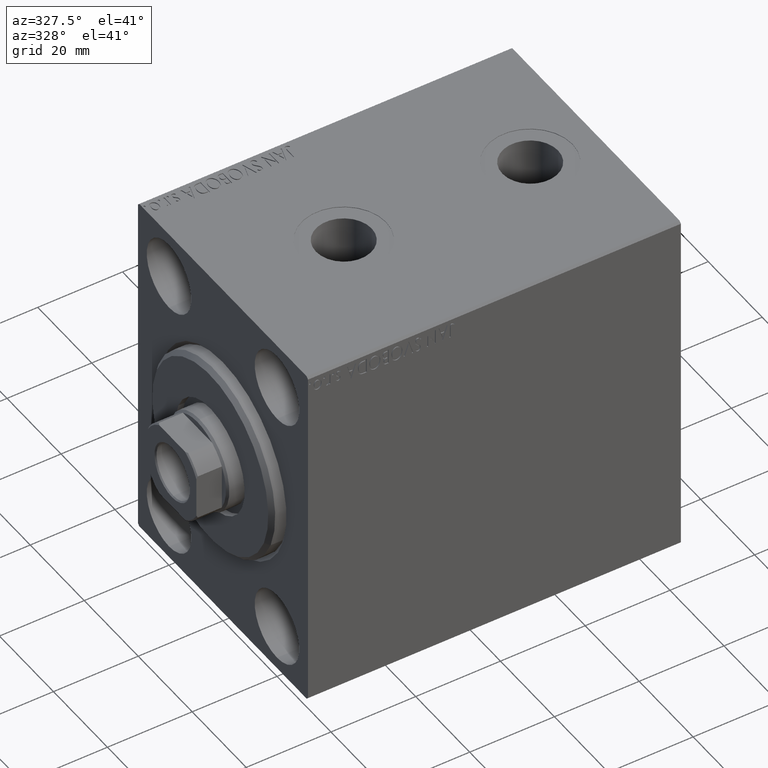
[diagram: clean part render]
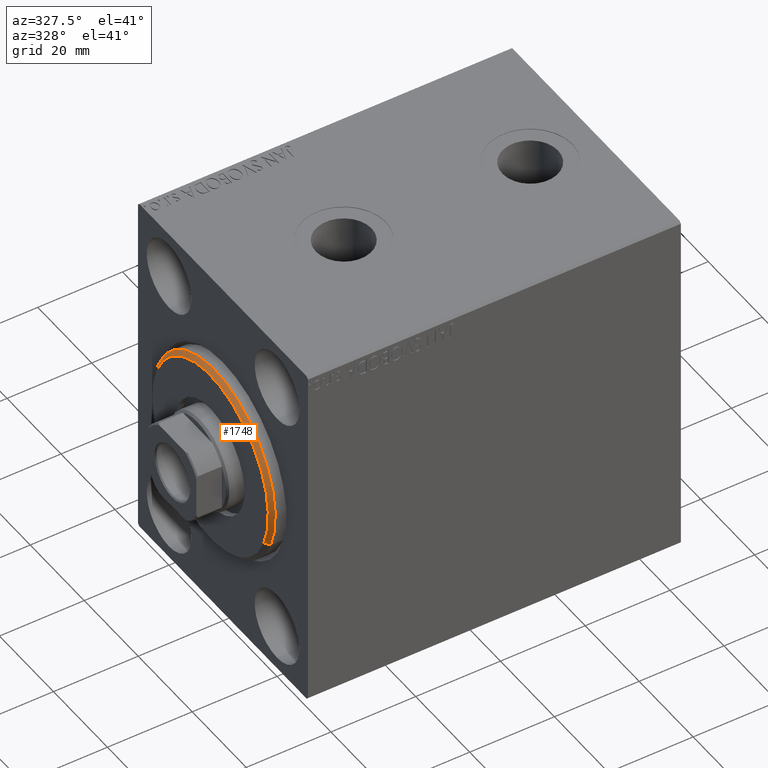
[diagram: same view with one face highlighted and labeled with its STEP entity id]
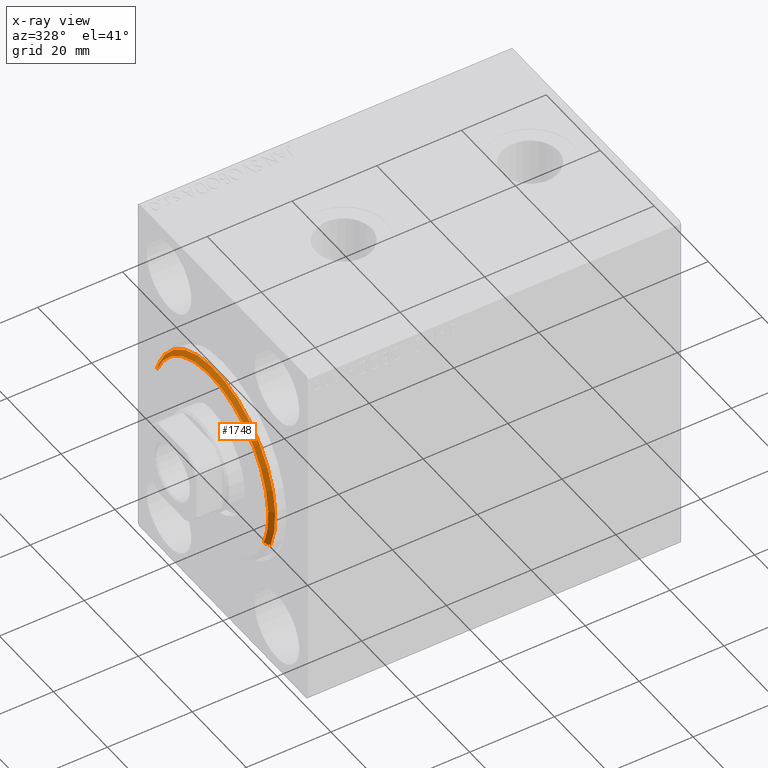
[diagram: x-ray of the same camera — body ghosted, the highlighted face saturated]
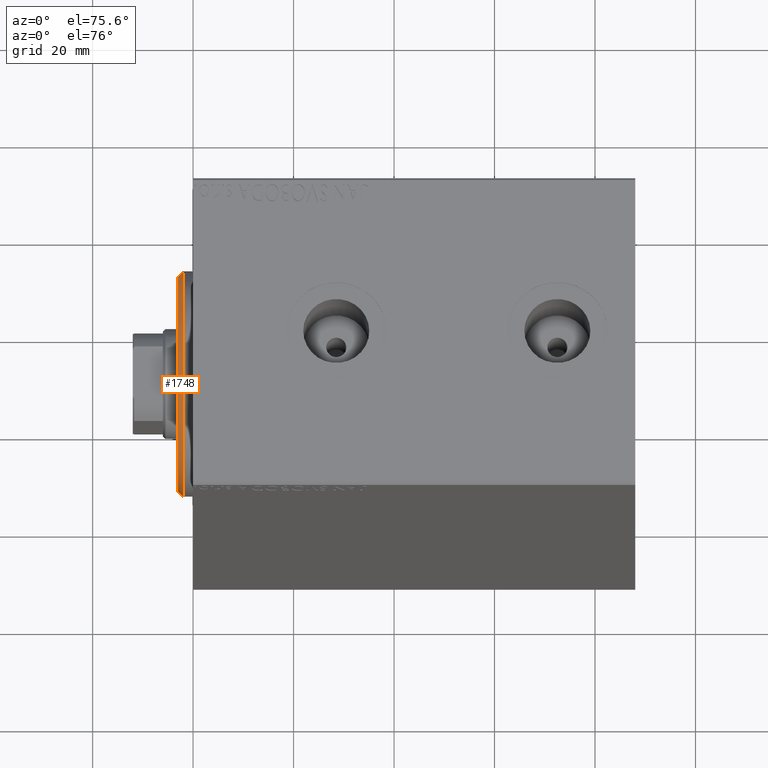
[diagram: same view with one face highlighted and labeled with its STEP entity id]
A machine part, auxiliary view. The second image highlights one B-rep face of the part: STEP entity #1748.
The next image is the same camera in x-ray: the body ghosted, the highlighted face saturated — about 0% of this face is hidden behind the body in this view.
A second angle (auxiliary view) of the same face is appended — the face is thin or edge-on in the first view.
In plain terms, the highlighted conical surface has half-angle 45 deg.
Its self-contained STEP definition (entity closure, byte-faithful):
#50 = DIRECTION ( 'NONE',  ( 0.000000000000000000, 0.000000000000000000, 1.000000000000000000 ) ) ;
#695 = CARTESIAN_POINT ( 'NONE',  ( 3.000000000000000000, 2.632990618166810024E-15, -21.50000000000000355 ) ) ;
#1179 = DIRECTION ( 'NONE',  ( -0.7071067811865487940, 0.000000000000000000, 0.7071067811865463515 ) ) ;
#1387 = CARTESIAN_POINT ( 'NONE',  ( 1.999999999999999112, 2.755455298081545172E-15, -22.50000000000000355 ) ) ;
#1639 = EDGE_CURVE ( 'NONE', #21794, #3740, #41893, .T. ) ;
#1748 = ADVANCED_FACE ( 'NONE', ( #3386 ), #5576, .T. ) ;
#2724 = AXIS2_PLACEMENT_3D ( 'NONE', #17853, #10701, #50 ) ;
#3386 = FACE_OUTER_BOUND ( 'NONE', #43599, .T. ) ;
#3740 = VERTEX_POINT ( 'NONE', #18084 ) ;
#5576 = CONICAL_SURFACE ( 'NONE', #2724, 21.50000000000000355, 0.7853981633974466137 ) ;
#5945 = CARTESIAN_POINT ( 'NONE',  ( 1.999999999999999112, 0.000000000000000000, 0.000000000000000000 ) ) ;
#10701 = DIRECTION ( 'NONE',  ( -1.000000000000000000, 0.000000000000000000, 0.000000000000000000 ) ) ;
#16193 = DIRECTION ( 'NONE',  ( -1.000000000000000000, 0.000000000000000000, 0.000000000000000000 ) ) ;
#16373 = ORIENTED_EDGE ( 'NONE', *, *, #24136, .F. ) ;
#17625 = LINE ( 'NONE', #695, #30041 ) ;
#17853 = CARTESIAN_POINT ( 'NONE',  ( 3.000000000000000000, 0.000000000000000000, 0.000000000000000000 ) ) ;
#18084 = CARTESIAN_POINT ( 'NONE',  ( 1.999999999999999112, 0.000000000000000000, 22.50000000000000355 ) ) ;
#19192 = CARTESIAN_POINT ( 'NONE',  ( 3.000000000000000000, 0.000000000000000000, 21.50000000000000355 ) ) ;
#19787 = VECTOR ( 'NONE', #1179, 1000.000000000000000 ) ;
#20596 = ORIENTED_EDGE ( 'NONE', *, *, #41110, .F. ) ;
#21794 = VERTEX_POINT ( 'NONE', #19192 ) ;
#21818 = VERTEX_POINT ( 'NONE', #1387 ) ;
#23067 = CARTESIAN_POINT ( 'NONE',  ( 3.000000000000000000, 2.694222958124177598E-15, -21.50000000000000355 ) ) ;
#23412 = AXIS2_PLACEMENT_3D ( 'NONE', #43034, #33021, #42372 ) ;
#24136 = EDGE_CURVE ( 'NONE', #21818, #3740, #26250, .T. ) ;
#26250 = CIRCLE ( 'NONE', #33388, 22.50000000000000355 ) ;
#29744 = DIRECTION ( 'NONE',  ( 0.000000000000000000, 0.000000000000000000, -1.000000000000000000 ) ) ;
#30041 = VECTOR ( 'NONE', #30950, 1000.000000000000000 ) ;
#30950 = DIRECTION ( 'NONE',  ( -0.7071067811865487940, 8.659560562354919300E-17, -0.7071067811865463515 ) ) ;
#31666 = CARTESIAN_POINT ( 'NONE',  ( 3.000000000000000000, 0.000000000000000000, 21.50000000000000355 ) ) ;
#31966 = CIRCLE ( 'NONE', #23412, 21.50000000000000355 ) ;
#33021 = DIRECTION ( 'NONE',  ( 1.000000000000000000, -0.000000000000000000, 0.000000000000000000 ) ) ;
#33388 = AXIS2_PLACEMENT_3D ( 'NONE', #5945, #16193, #29744 ) ;
#35342 = VERTEX_POINT ( 'NONE', #23067 ) ;
#35793 = EDGE_CURVE ( 'NONE', #35342, #21818, #17625, .T. ) ;
#37483 = ORIENTED_EDGE ( 'NONE', *, *, #1639, .T. ) ;
#41110 = EDGE_CURVE ( 'NONE', #21794, #35342, #31966, .T. ) ;
#41680 = ORIENTED_EDGE ( 'NONE', *, *, #35793, .F. ) ;
#41893 = LINE ( 'NONE', #31666, #19787 ) ;
#42372 = DIRECTION ( 'NONE',  ( 0.000000000000000000, 0.000000000000000000, -1.000000000000000000 ) ) ;
#43034 = CARTESIAN_POINT ( 'NONE',  ( 3.000000000000000000, 0.000000000000000000, 0.000000000000000000 ) ) ;
#43599 = EDGE_LOOP ( 'NONE', ( #41680, #20596, #37483, #16373 ) ) ;